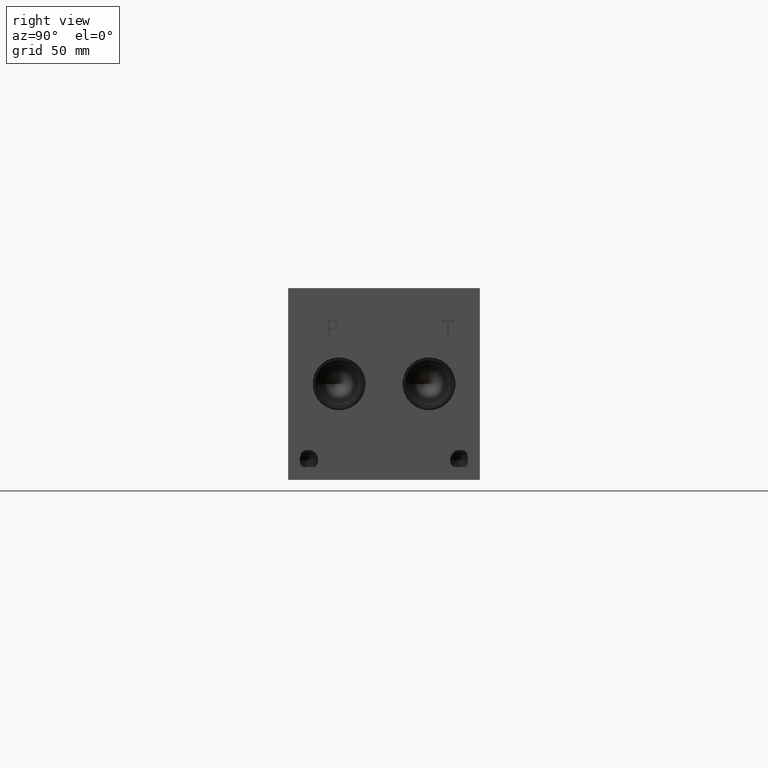
[diagram: clean part render]
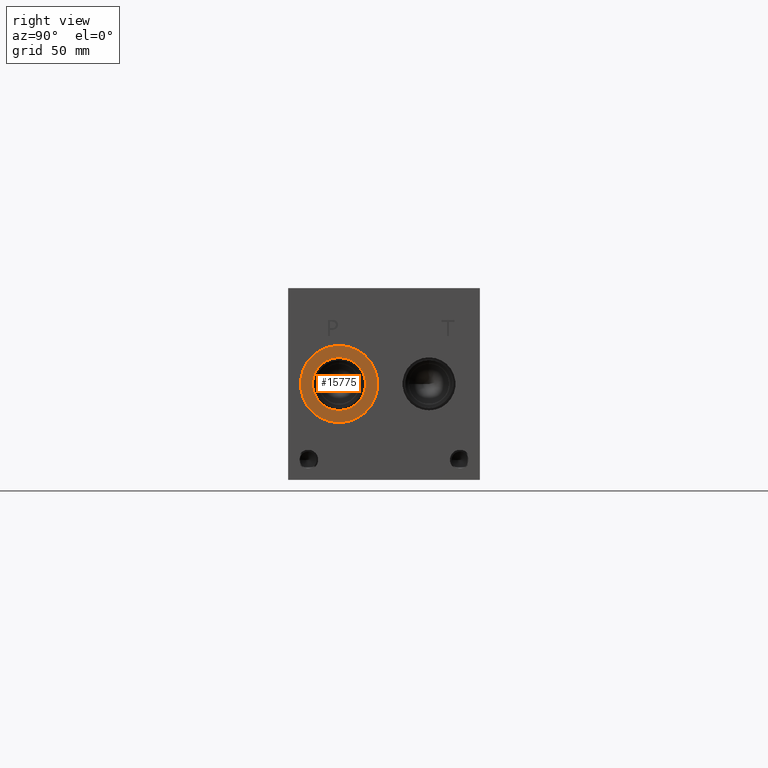
[diagram: same view with one face highlighted and labeled with its STEP entity id]
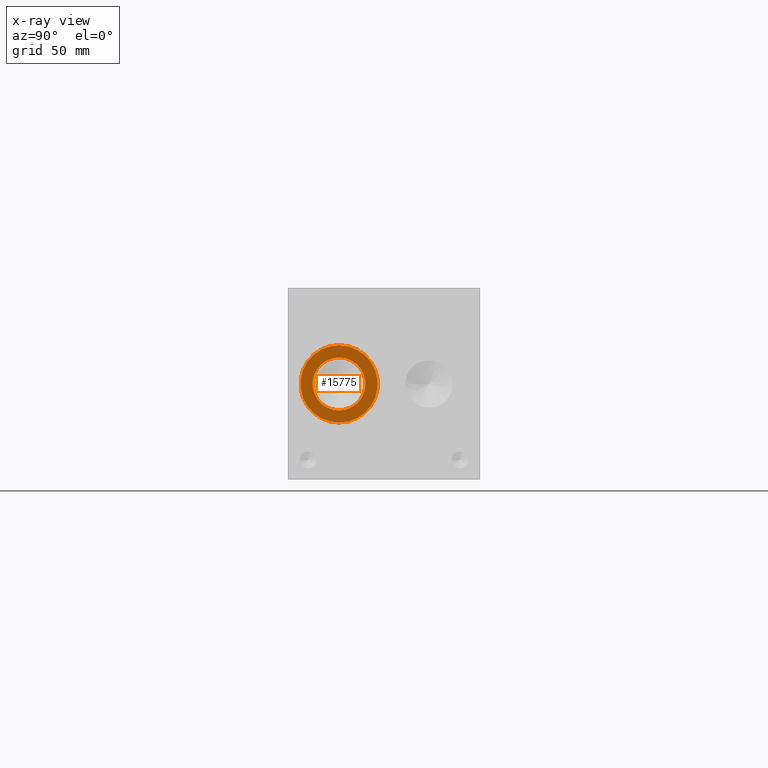
[diagram: x-ray of the same camera — body ghosted, the highlighted face saturated]
A machine part, right view. The second image highlights one B-rep face of the part: STEP entity #15775.
The next image is the same camera in x-ray: the body ghosted, the highlighted face saturated — about 0% of this face is hidden behind the body in this view.
In plain terms, the highlighted planar face has unit normal (-1, 0, 0).
Its self-contained STEP definition (entity closure, byte-faithful):
#266=CIRCLE('',#16474,15.3416);
#267=CIRCLE('',#16475,15.3416);
#268=CIRCLE('',#16477,10.5283);
#269=CIRCLE('',#16478,10.5283);
#781=FACE_BOUND('',#2794,.T.);
#1253=PLANE('',#16476);
#1884=FACE_OUTER_BOUND('',#2793,.T.);
#2793=EDGE_LOOP('',(#13138,#13139));
#2794=EDGE_LOOP('',(#13140,#13141));
#7309=VERTEX_POINT('',#26478);
#7310=VERTEX_POINT('',#26480);
#7311=VERTEX_POINT('',#26484);
#7312=VERTEX_POINT('',#26485);
#9390=EDGE_CURVE('',#7309,#7310,#266,.T.);
#9391=EDGE_CURVE('',#7310,#7309,#267,.T.);
#9392=EDGE_CURVE('',#7311,#7312,#268,.T.);
#9393=EDGE_CURVE('',#7312,#7311,#269,.T.);
#13138=ORIENTED_EDGE('',*,*,#9391,.F.);
#13139=ORIENTED_EDGE('',*,*,#9390,.F.);
#13140=ORIENTED_EDGE('',*,*,#9392,.T.);
#13141=ORIENTED_EDGE('',*,*,#9393,.T.);
#15775=ADVANCED_FACE('',(#1884,#781),#1253,.F.);
#16474=AXIS2_PLACEMENT_3D('',#26481,#19183,#19184);
#16475=AXIS2_PLACEMENT_3D('',#26482,#19185,#19186);
#16476=AXIS2_PLACEMENT_3D('',#26483,#19187,#19188);
#16477=AXIS2_PLACEMENT_3D('',#26486,#19189,#19190);
#16478=AXIS2_PLACEMENT_3D('',#26487,#19191,#19192);
#19183=DIRECTION('center_axis',(-1.,0.,0.));
#19184=DIRECTION('ref_axis',(0.,0.,1.));
#19185=DIRECTION('center_axis',(-1.,0.,0.));
#19186=DIRECTION('ref_axis',(0.,0.,1.));
#19187=DIRECTION('center_axis',(-1.,0.,0.));
#19188=DIRECTION('ref_axis',(0.,0.,1.));
#19189=DIRECTION('center_axis',(-1.,0.,0.));
#19190=DIRECTION('ref_axis',(0.,0.,1.));
#19191=DIRECTION('center_axis',(-1.,0.,0.));
#19192=DIRECTION('ref_axis',(0.,0.,1.));
#26478=CARTESIAN_POINT('',(269.0876,20.2438,53.4416));
#26480=CARTESIAN_POINT('',(269.0876,20.2438,22.7584));
#26481=CARTESIAN_POINT('Origin',(269.0876,20.2438,38.1));
#26482=CARTESIAN_POINT('Origin',(269.0876,20.2438,38.1));
#26483=CARTESIAN_POINT('Origin',(269.0876,20.2438,27.5717));
#26484=CARTESIAN_POINT('',(269.0876,20.2438,27.5717));
#26485=CARTESIAN_POINT('',(269.0876,20.2438,48.6283));
#26486=CARTESIAN_POINT('Origin',(269.0876,20.2438,38.1));
#26487=CARTESIAN_POINT('Origin',(269.0876,20.2438,38.1));